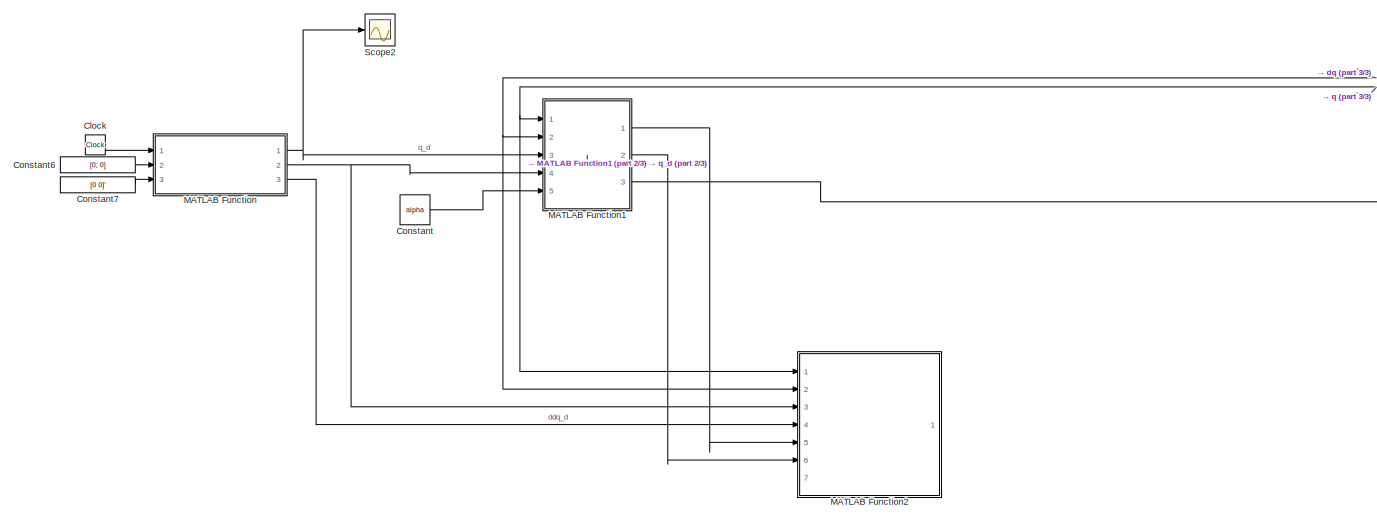
[diagram: root canvas - part 1/3, left side, full height]
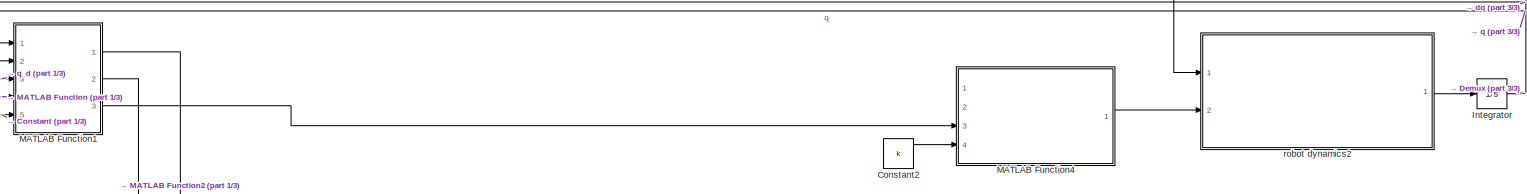
[diagram: root canvas - part 2/3, central region]
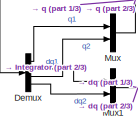
[diagram: root canvas - part 3/3, middle right region]
MODEL slx_63a71bee6280
KIND model
CONFIG AbsTol = auto
CONFIG EnableMultiTasking = off
CONFIG FixedStep = 1e-3
CONFIG InitFcn = acm_init
CONFIG MaxStep = auto
CONFIG MinStep = auto
CONFIG RelTol = 1e-3
CONFIG SampleTimeConstraint = Unconstrained
CONFIG SolverName = ode4
CONFIG StartTime = 0.0
CONFIG StopTime = 10
BLOCK [Clock] Clock
BLOCK [Constant] Constant
  Value = alpha
BLOCK [Constant] Constant2
  Value = k
BLOCK [Constant] Constant6
  Value = [0; 0]
BLOCK [Constant] Constant7
  Value = [0 0]'
BLOCK [Demux] Demux
  Ports = [1, 4]
BLOCK [Integrator] Integrator
  Ports = [1, 1]
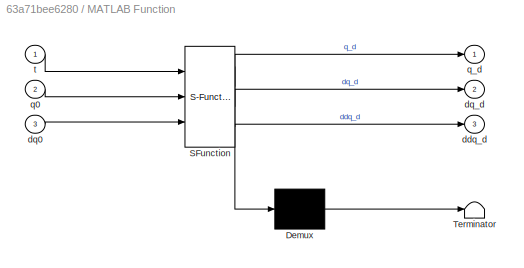
BLOCK [SubSystem] MATLAB Function
  ErrorFcn = Stateflow.Translate.translate
  PermitHierarchicalResolution = ExplicitOnly
  Ports = [3, 3]
  RequestExecContextInheritance = off
  SFBlockType = MATLAB Function
  TreatAsAtomicUnit = on
BLOCK [Demux] MATLAB Function/ Demux 
  Outputs = 1
  Ports = [1, 1]
BLOCK [S-Function] MATLAB Function/ SFunction 
  EnableBusSupport = on
  FunctionName = sf_sfun
  PortCounts = [3 4]
  Ports = [3, 4]
  SFcnIsStateOwnerBlock = off
  SFunctionDeploymentMode = off
  Tag = Stateflow S-Function 10
BLOCK [Terminator] MATLAB Function/ Terminator 
BLOCK [Outport] MATLAB Function/ddq_d
  Port = 3
  VectorParamsAs1DForOutWhenUnconnected = off
BLOCK [Inport] MATLAB Function/dq0
  Port = 3
BLOCK [Outport] MATLAB Function/dq_d
  Port = 2
  VectorParamsAs1DForOutWhenUnconnected = off
BLOCK [Inport] MATLAB Function/q0
  Port = 2
BLOCK [Outport] MATLAB Function/q_d
  VectorParamsAs1DForOutWhenUnconnected = off
BLOCK [Inport] MATLAB Function/t
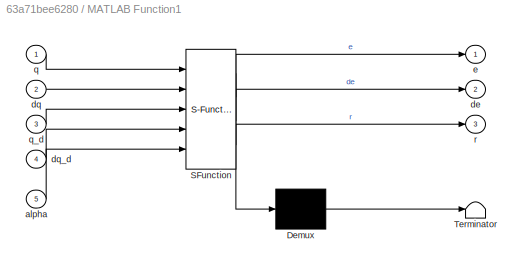
BLOCK [SubSystem] MATLAB Function1
  ErrorFcn = Stateflow.Translate.translate
  PermitHierarchicalResolution = ExplicitOnly
  Ports = [5, 3]
  RequestExecContextInheritance = off
  SFBlockType = MATLAB Function
  TreatAsAtomicUnit = on
BLOCK [Demux] MATLAB Function1/ Demux 
  Outputs = 1
  Ports = [1, 1]
BLOCK [S-Function] MATLAB Function1/ SFunction 
  EnableBusSupport = on
  FunctionName = sf_sfun
  PortCounts = [5 4]
  Ports = [5, 4]
  SFcnIsStateOwnerBlock = off
  SFunctionDeploymentMode = off
  Tag = Stateflow S-Function 2
BLOCK [Terminator] MATLAB Function1/ Terminator 
BLOCK [Inport] MATLAB Function1/alpha
  Port = 5
BLOCK [Outport] MATLAB Function1/de
  Port = 2
BLOCK [Inport] MATLAB Function1/dq
  Port = 2
BLOCK [Inport] MATLAB Function1/dq_d
  Port = 4
BLOCK [Outport] MATLAB Function1/e
BLOCK [Inport] MATLAB Function1/q
BLOCK [Inport] MATLAB Function1/q_d
  Port = 3
BLOCK [Outport] MATLAB Function1/r
  Port = 3
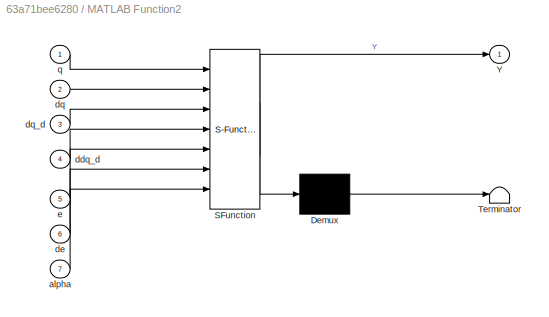
BLOCK [SubSystem] MATLAB Function2
  ErrorFcn = Stateflow.Translate.translate
  PermitHierarchicalResolution = ExplicitOnly
  Ports = [7, 1]
  RequestExecContextInheritance = off
  SFBlockType = MATLAB Function
  TreatAsAtomicUnit = on
BLOCK [Demux] MATLAB Function2/ Demux 
  Outputs = 1
  Ports = [1, 1]
BLOCK [S-Function] MATLAB Function2/ SFunction 
  EnableBusSupport = on
  FunctionName = sf_sfun
  PortCounts = [7 2]
  Ports = [7, 2]
  SFcnIsStateOwnerBlock = off
  SFunctionDeploymentMode = off
  Tag = Stateflow S-Function 1
BLOCK [Terminator] MATLAB Function2/ Terminator 
BLOCK [Outport] MATLAB Function2/Y
BLOCK [Inport] MATLAB Function2/alpha
  Port = 7
BLOCK [Inport] MATLAB Function2/ddq_d
  Port = 4
BLOCK [Inport] MATLAB Function2/de
  Port = 6
BLOCK [Inport] MATLAB Function2/dq
  Port = 2
BLOCK [Inport] MATLAB Function2/dq_d
  Port = 3
BLOCK [Inport] MATLAB Function2/e
  Port = 5
BLOCK [Inport] MATLAB Function2/q
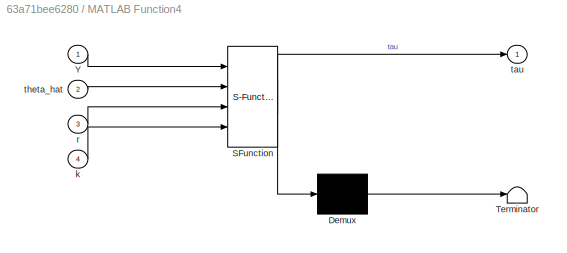
BLOCK [SubSystem] MATLAB Function4
  ErrorFcn = Stateflow.Translate.translate
  PermitHierarchicalResolution = ExplicitOnly
  Ports = [4, 1]
  RequestExecContextInheritance = off
  SFBlockType = MATLAB Function
  TreatAsAtomicUnit = on
BLOCK [Demux] MATLAB Function4/ Demux 
  Outputs = 1
  Ports = [1, 1]
BLOCK [S-Function] MATLAB Function4/ SFunction 
  EnableBusSupport = on
  FunctionName = sf_sfun
  PortCounts = [4 2]
  Ports = [4, 2]
  SFcnIsStateOwnerBlock = off
  SFunctionDeploymentMode = off
  Tag = Stateflow S-Function 5
BLOCK [Terminator] MATLAB Function4/ Terminator 
BLOCK [Inport] MATLAB Function4/Y
BLOCK [Inport] MATLAB Function4/k
  Port = 4
BLOCK [Inport] MATLAB Function4/r
  Port = 3
BLOCK [Outport] MATLAB Function4/tau
BLOCK [Inport] MATLAB Function4/theta_hat
  Port = 2
BLOCK [Mux] Mux
  DisplayOption = bar
  Inputs = 2
  Ports = [2, 1]
BLOCK [Mux] Mux1
  DisplayOption = bar
  Inputs = 2
  Ports = [2, 1]
BLOCK [Scope] Scope2
  Floating = off
  NumInputPorts = 1
  Ports = [1]
  ScopeSpecificationString = Simulink.scopes.TimeScopeBlockCfg('CurrentConfiguration', extmgr.ConfigurationSet(extmgr.Configuration('Core','General UI',true),extmgr.Configuration('Core','Source UI',true),extmgr.Configuration('Sources','WiredSimulink',true,'DataLoggingVariableName','ScopeData1'),extmgr.Configuration('Visuals','Time Domain',true,'SerializedDisplays',{struct('MinYLimReal','-2.5','MaxYLimReal','2.5','YLabelReal',...<+1388ch>
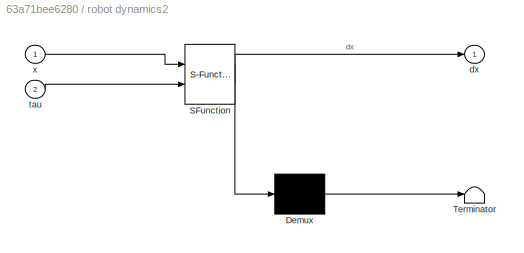
BLOCK [SubSystem] robot dynamics2
  ErrorFcn = Stateflow.Translate.translate
  PermitHierarchicalResolution = ExplicitOnly
  Ports = [2, 1]
  RequestExecContextInheritance = off
  SFBlockType = MATLAB Function
  TreatAsAtomicUnit = on
BLOCK [Demux] robot dynamics2/ Demux 
  Outputs = 1
  Ports = [1, 1]
BLOCK [S-Function] robot dynamics2/ SFunction 
  EnableBusSupport = on
  FunctionName = sf_sfun
  Parameters = fd1,fd2,p1,p2,p3
  PortCounts = [2 2]
  Ports = [2, 2]
  SFcnIsStateOwnerBlock = off
  SFunctionDeploymentMode = off
  Tag = Stateflow S-Function 20
BLOCK [Terminator] robot dynamics2/ Terminator 
BLOCK [Outport] robot dynamics2/dx
  VectorParamsAs1DForOutWhenUnconnected = off
BLOCK [Inport] robot dynamics2/tau
  Port = 2
BLOCK [Inport] robot dynamics2/x
LINE Clock:1 -> MATLAB Function:1
LINE Constant2:1 -> MATLAB Function4:4
LINE Constant6:1 -> MATLAB Function:2
LINE Constant7:1 -> MATLAB Function:3
LINE Constant:1 -> MATLAB Function1:5
LINE Demux:1 -> Mux:1
LINE Demux:2 -> Mux1:1
LINE Demux:3 -> Mux:2
LINE Demux:4 -> Mux1:2
NET Integrator:1 -> Demux:1, robot dynamics2:1
LINE MATLAB Function1:1 -> MATLAB Function2:5
LINE MATLAB Function1:2 -> MATLAB Function2:6
LINE MATLAB Function1:3 -> MATLAB Function4:3
LINE MATLAB Function4:1 -> robot dynamics2:2
NET MATLAB Function:1 -> MATLAB Function1:3, Scope2:1
NET MATLAB Function:2 -> MATLAB Function1:4, MATLAB Function2:3
LINE MATLAB Function:3 -> MATLAB Function2:4
NET Mux1:1 -> MATLAB Function1:2, MATLAB Function2:2
NET Mux:1 -> MATLAB Function1:1, MATLAB Function2:1
LINE robot dynamics2:1 -> Integrator:1
note: NET lines group one-source signal fan-out (src -> all destinations, sorted); 1:1 wires keep LINE
CHART MATLAB Function2 states=1 transitions=1
  STATE_LABEL 'eML_blk_kernel()'
  STATE_LABEL 'SCRIPT:\nfunction Y = regressor_matrix(q,dq,dq_d,ddq_d,e,de,alpha)\n\n% Intermediate terms\nsigma1 = ddq_d + alpha * de;\nsigma2 = dq_d + alpha * e;\nsigma3 = dq;  \n\n% Trigonometric terms\nc2 = cos(q(2));\ns2 = sin(q(2));\n\n% Initialize regressor matrix\nY = zeros(2, 5);\n\n% Row 1\nY(1,1) = sigma1(1);\nY(1,2) = sigma1(2);\nY(1,3) = 2 * c2 * sigma1(1) + c2 * sigma1(2)-s2 * dq(2) * sigma2(1) - s2 * (dq(1) + dq(2)...<+184ch>'
CHART MATLAB Function1 states=1 transitions=1
  STATE_LABEL 'eML_blk_kernel()'
  STATE_LABEL 'SCRIPT:\nfunction [e, de, r] = error(q,dq,q_d,dq_d,alpha)\n\n\ne = q_d-q;\nde = dq_d-dq;\n\nr = de + alpha*e;\n\n'
CHART MATLAB Function4 states=1 transitions=1
  STATE_LABEL 'eML_blk_kernel()'
  STATE_LABEL 'SCRIPT:\nfunction tau = controller_law(Y,theta_hat,r,k)\n\ntau = k*r + Y*theta_hat;\n'
CHART MATLAB Function states=1 transitions=1
  STATE_LABEL 'eML_blk_kernel()'
  STATE_LABEL 'SCRIPT:\nfunction [q_d, dq_d, ddq_d] = desired_traj(t,q0,dq0)\n   \n    q_d   = [sin(3*t);2*cos(t)] + dq0*t + q0;\n    dq_d  = [3*cos(3*t); -2*sin(t)] + dq0;\n    ddq_d = [-9*cos(3*t); -2*cos(t)];\nend\n'
CHART robot dynamics2 states=1 transitions=1
  STATE_LABEL 'eML_blk_kernel()'
  STATE_LABEL 'SCRIPT:\n% *************************************************************************\n%                        2-Link Manipulator Dynamics                      *\n% *************************************************************************\n\nfunction dx = fcn_twoLinkDynamics(x, tau, p1, p2, p3, fd1, fd2)\n    q1  = x(1);\n    dq1 = x(2);\n    q2  = x(3);\n    dq2 = x(4);\n    \n    M      = zeros(2,2);\n    M...<+439ch>'
CHART  states=0 transitions=0
CHART  states=0 transitions=0
CHART  states=0 transitions=0
CHART  states=0 transitions=0
CHART  states=0 transitions=0
